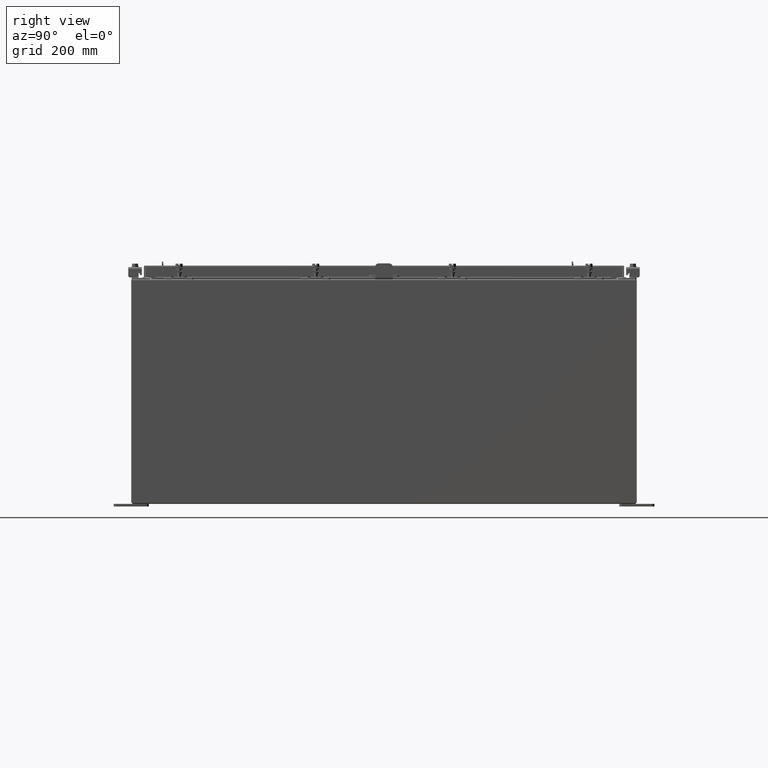
[diagram: clean part render]
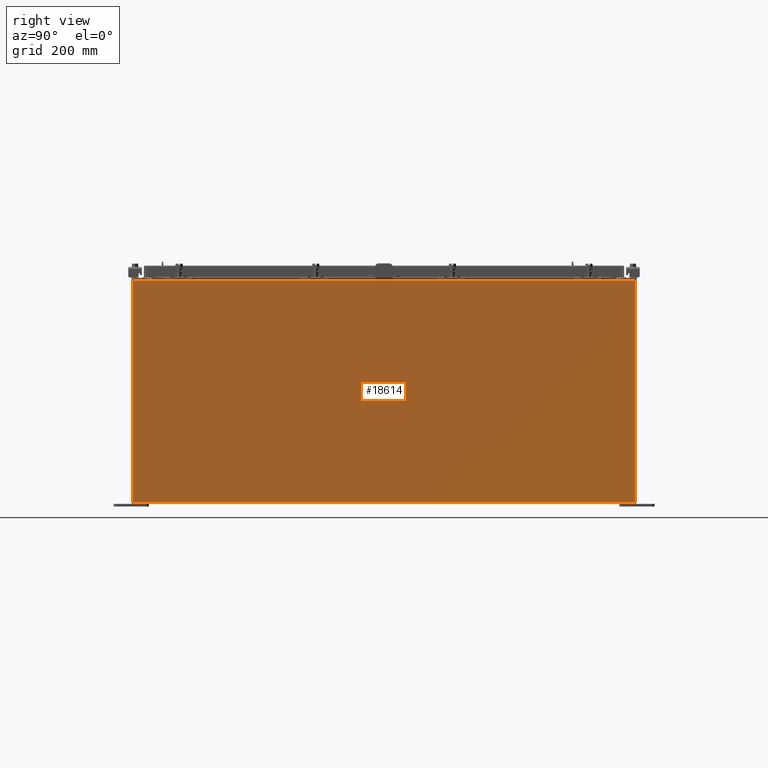
[diagram: same view with one face highlighted and labeled with its STEP entity id]
A machine part, right view. The second image highlights one B-rep face of the part: STEP entity #18614.
In plain terms, the highlighted planar face has unit normal (-1, 0, 0).
Its self-contained STEP definition (entity closure, byte-faithful):
#112 = DIRECTION ( 'NONE',  ( 2.091457255054409500E-031, -1.000000000000000000, 6.096072018129156600E-017 ) ) ;
#556 = DIRECTION ( 'NONE',  ( -0.0000000000000000000, -1.000000000000000000, -0.0000000000000000000 ) ) ;
#1865 = VERTEX_POINT ( 'NONE', #4648 ) ;
#1967 = AXIS2_PLACEMENT_3D ( 'NONE', #21003, #9700, #22917 ) ;
#2155 = CARTESIAN_POINT ( 'NONE',  ( 14.99999999999999800, 17.92530000000000000, -4.926328407896216100E-014 ) ) ;
#2552 = LINE ( 'NONE', #2155, #12686 ) ;
#2593 = LINE ( 'NONE', #11935, #12719 ) ;
#3720 = EDGE_CURVE ( 'NONE', #1865, #11460, #2593, .T. ) ;
#4648 = CARTESIAN_POINT ( 'NONE',  ( 15.00000000000005300, 17.92530000000000000, 15.83759999999998600 ) ) ;
#7391 = ORIENTED_EDGE ( 'NONE', *, *, #21479, .T. ) ;
#7473 = FACE_OUTER_BOUND ( 'NONE', #12013, .T. ) ;
#8022 = VERTEX_POINT ( 'NONE', #16808 ) ;
#8383 = ORIENTED_EDGE ( 'NONE', *, *, #23560, .T. ) ;
#8932 = LINE ( 'NONE', #13346, #23427 ) ;
#9700 = DIRECTION ( 'NONE',  ( -1.000000000000000000, 0.0000000000000000000, 3.430827668758846700E-015 ) ) ;
#11460 = VERTEX_POINT ( 'NONE', #20052 ) ;
#11935 = CARTESIAN_POINT ( 'NONE',  ( 15.00000000000005300, 17.92530000000000000, 15.83759999999998600 ) ) ;
#11955 = CARTESIAN_POINT ( 'NONE',  ( 14.99999999999999800, -17.92530000000000000, -5.172322868739428200E-014 ) ) ;
#12013 = EDGE_LOOP ( 'NONE', ( #23710, #7391, #23792, #8383 ) ) ;
#12686 = VECTOR ( 'NONE', #15421, 39.37007874015748100 ) ;
#12719 = VECTOR ( 'NONE', #556, 39.37007874015748100 ) ;
#13346 = CARTESIAN_POINT ( 'NONE',  ( 14.99999999999999800, -17.92530000000000000, 0.01299999999999984700 ) ) ;
#13430 = PLANE ( 'NONE',  #1967 ) ;
#13657 = CARTESIAN_POINT ( 'NONE',  ( 14.99999999999999800, -17.92530000000000000, 0.01300000000000023200 ) ) ;
#13832 = DIRECTION ( 'NONE',  ( -3.430827668758847500E-015, 0.0000000000000000000, -1.000000000000000000 ) ) ;
#15421 = DIRECTION ( 'NONE',  ( 3.430827668758847500E-015, -1.372331067503538800E-016, 1.000000000000000000 ) ) ;
#15659 = LINE ( 'NONE', #11955, #20083 ) ;
#16808 = CARTESIAN_POINT ( 'NONE',  ( 14.99999999999999800, 17.92530000000000000, 0.01299999999999766100 ) ) ;
#18614 = ADVANCED_FACE ( 'NONE', ( #7473 ), #13430, .F. ) ;
#18670 = VERTEX_POINT ( 'NONE', #13657 ) ;
#19417 = EDGE_CURVE ( 'NONE', #8022, #18670, #8932, .T. ) ;
#20052 = CARTESIAN_POINT ( 'NONE',  ( 15.00000000000005300, -17.92530000000000000, 15.83760000000000000 ) ) ;
#20083 = VECTOR ( 'NONE', #13832, 39.37007874015748100 ) ;
#21003 = CARTESIAN_POINT ( 'NONE',  ( 14.99999999999999800, 0.0000000000000000000, -5.172322868739428200E-014 ) ) ;
#21479 = EDGE_CURVE ( 'NONE', #11460, #18670, #15659, .T. ) ;
#22917 = DIRECTION ( 'NONE',  ( 3.430827668758846700E-015, 0.0000000000000000000, 1.000000000000000000 ) ) ;
#23427 = VECTOR ( 'NONE', #112, 39.37007874015748100 ) ;
#23560 = EDGE_CURVE ( 'NONE', #8022, #1865, #2552, .T. ) ;
#23710 = ORIENTED_EDGE ( 'NONE', *, *, #3720, .T. ) ;
#23792 = ORIENTED_EDGE ( 'NONE', *, *, #19417, .F. ) ;